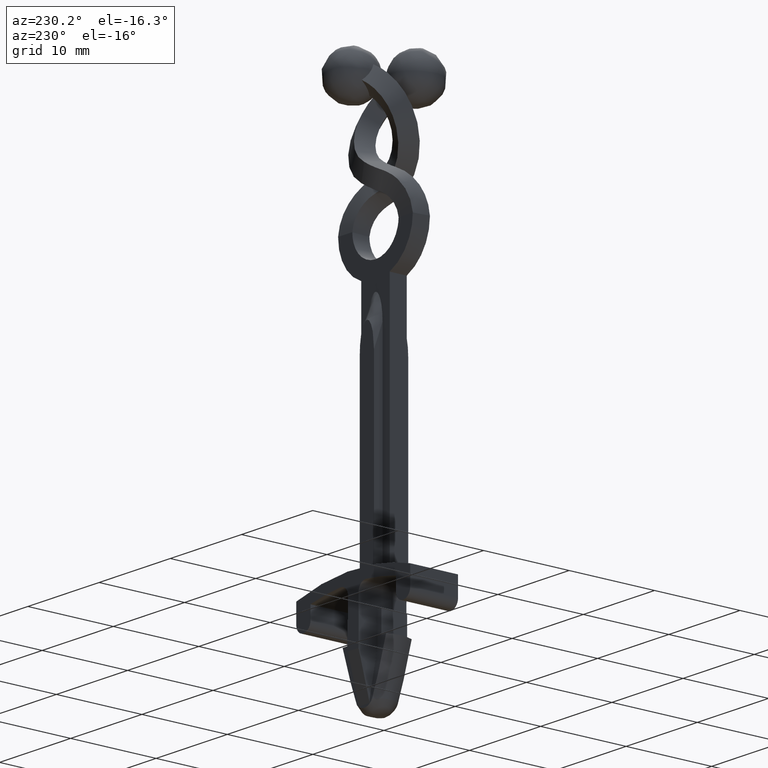
[diagram: clean part render]
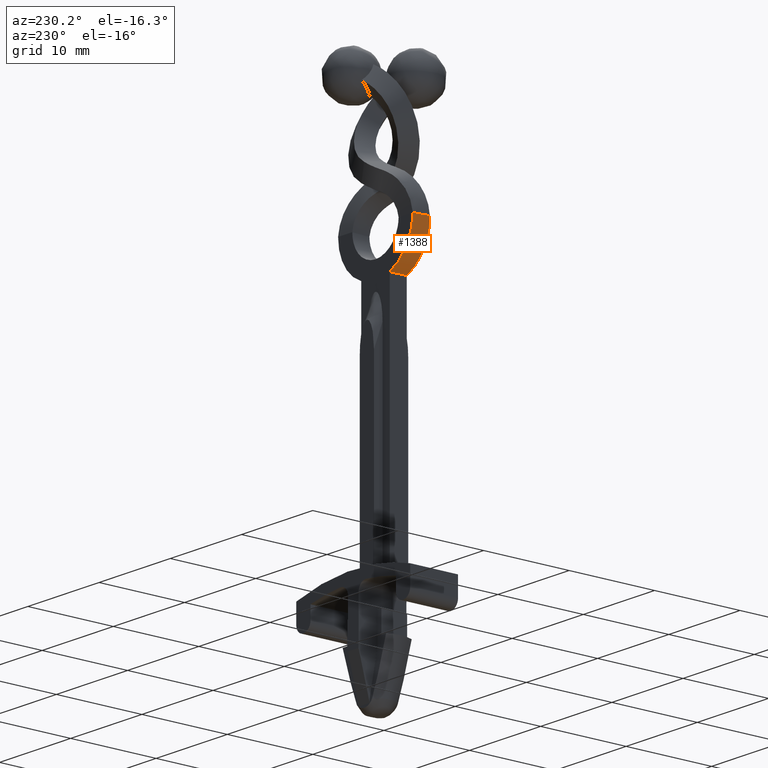
[diagram: same view with one face highlighted and labeled with its STEP entity id]
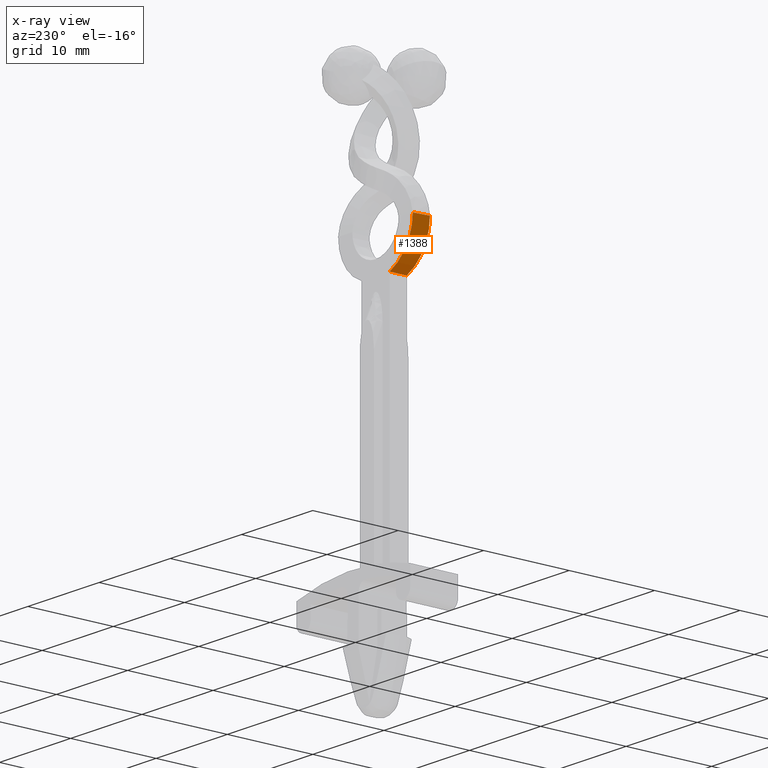
[diagram: x-ray of the same camera — body ghosted, the highlighted face saturated]
A machine part, auxiliary view. The second image highlights one B-rep face of the part: STEP entity #1388.
The next image is the same camera in x-ray: the body ghosted, the highlighted face saturated — about 0% of this face is hidden behind the body in this view.
In plain terms, the highlighted face is a freeform B-spline surface patch.
Its self-contained STEP definition (entity closure, byte-faithful):
#1304=CARTESIAN_POINT('',(-1.964517642053266,1.010006527384433,-4.864117986150483));
#1305=CARTESIAN_POINT('',(-1.964517642053266,0.336646990677876,-4.864117986150483));
#1306=CARTESIAN_POINT('',(-1.964517642053266,-0.336712546028679,-4.864117986150484));
#1307=CARTESIAN_POINT('',(-1.964517642053266,-1.010072082735236,-4.864117986150483));
#1308=CARTESIAN_POINT('',(-2.615844031577649,1.010006527384433,-4.601618689011748));
#1309=CARTESIAN_POINT('',(-2.615844031577648,0.336646990677876,-4.601618689011749));
#1310=CARTESIAN_POINT('',(-2.615844031577649,-0.336712546028679,-4.601618689011750));
#1311=CARTESIAN_POINT('',(-2.615844031577649,-1.010072082735236,-4.601618689011748));
#1312=CARTESIAN_POINT('',(-3.800317120064837,1.010006527384434,-3.823963477575635));
#1313=CARTESIAN_POINT('',(-3.800317120064835,0.336646990677876,-3.823963477575633));
#1314=CARTESIAN_POINT('',(-3.800317120064834,-0.336712546028679,-3.823963477575633));
#1315=CARTESIAN_POINT('',(-3.800317120064837,-1.010072082735236,-3.823963477575635));
#1316=CARTESIAN_POINT('',(-4.878076939143449,1.010006527384433,-2.208415608271143));
#1317=CARTESIAN_POINT('',(-4.878076939143448,0.336646990677875,-2.208415608271143));
#1318=CARTESIAN_POINT('',(-4.878076939143449,-0.336712546028680,-2.208415608271143));
#1319=CARTESIAN_POINT('',(-4.878076939143449,-1.010072082735236,-2.208415608271142));
#1320=CARTESIAN_POINT('',(-5.174171803169217,1.010006527384434,-1.028619550273616));
#1321=CARTESIAN_POINT('',(-5.174171803169216,0.336646990677875,-1.028619550273617));
#1322=CARTESIAN_POINT('',(-5.174171803169215,-0.336712546028679,-1.028619550273617));
#1323=CARTESIAN_POINT('',(-5.174171803169217,-1.010072082735235,-1.028619550273617));
#1324=CARTESIAN_POINT('',(-5.241476646714062,1.010006527384433,-0.344372828346020));
#1325=CARTESIAN_POINT('',(-5.241476646714060,0.336646990677875,-0.344372828346021));
#1326=CARTESIAN_POINT('',(-5.241476646714061,-0.336712546028680,-0.344372828346021));
#1327=CARTESIAN_POINT('',(-5.241476646714062,-1.010072082735236,-0.344372828346021));
#1328=CARTESIAN_POINT('',(-5.251518228079001,1.010006527384433,-0.121052846695626));
#1329=CARTESIAN_POINT('',(-5.251518228079001,0.336646990677875,-0.121052846695626));
#1330=CARTESIAN_POINT('',(-5.251518228079001,-0.336712546028680,-0.121052846695626));
#1331=CARTESIAN_POINT('',(-5.251518228079001,-1.010072082735236,-0.121052846695626));
#1332=CARTESIAN_POINT('',(-5.249881847022250,1.010006527384433,0.054907631001437));
#1333=CARTESIAN_POINT('',(-5.249881847022248,0.336646990677875,0.054907631001437));
#1334=CARTESIAN_POINT('',(-5.249881847022248,-0.336712546028680,0.054907631001437));
#1335=CARTESIAN_POINT('',(-5.249881847022250,-1.010072082735236,0.054907631001437));
#1336=CARTESIAN_POINT('',(-5.249998117434587,1.010006527384433,0.078644371818745));
#1337=CARTESIAN_POINT('',(-5.249998117434587,0.336646990677875,0.078644371818745));
#1338=CARTESIAN_POINT('',(-5.249998117434587,-0.336712546028680,0.078644371818745));
#1339=CARTESIAN_POINT('',(-5.249998117434587,-1.010072082735236,0.078644371818745));
#1340=B_SPLINE_SURFACE_WITH_KNOTS('',3,3,((#1304,#1308,#1312,#1316,#1320,#1324,#1328,#1332,#1336),(#1305,#1309,#1313,#1317,#1321,#1325,#1329,#1333,#1337),(#1306,#1310,#1314,#1318,#1322,#1326,#1330,#1334,#1338),(#1307,#1311,#1315,#1319,#1323,#1327,#1331,#1335,#1339)),.UNSPECIFIED.,.F.,.F.,.U.,(4,4),(4,1,1,2,1,4),(0.0,2.020078610119676),(0.0,2.180433546333000,4.310327434087039,5.907747849902568,6.440221321841078,6.537984767189245),.UNSPECIFIED.);
#1341=CARTESIAN_POINT('',(-2.0,1.0,-4.851873448849520));
#1342=VERTEX_POINT('',#1341);
#1343=CARTESIAN_POINT('',(-5.249820342743500,1.000006138446738,-0.040918356316616));
#1344=VERTEX_POINT('',#1343);
#1345=CARTESIAN_POINT('',(-2.0,1.0,-4.851873448849520));
#1346=CARTESIAN_POINT('',(-2.004149364104244,1.000000003951953,-4.850164847576791));
#1347=CARTESIAN_POINT('',(-2.008297261169627,1.000000007909503,-4.848448869203344));
#1348=CARTESIAN_POINT('',(-2.972574699879736,1.000000927936176,-4.449528837017398));
#1349=CARTESIAN_POINT('',(-3.711771195839598,1.000002012398060,-3.711018887917664));
#1350=CARTESIAN_POINT('',(-4.449906683925233,1.000003095303358,-2.973568961256038));
#1351=CARTESIAN_POINT('',(-4.850100203492644,1.000004177778500,-2.008473954480682));
#1352=CARTESIAN_POINT('',(-5.241889821554256,1.000005237522103,-1.063645551194133));
#1353=CARTESIAN_POINT('',(-5.249820342743500,1.000006138446738,-0.040918356316616));
#1354=B_SPLINE_CURVE_WITH_KNOTS('',2,(#1345,#1346,#1347,#1348,#1349,#1350,#1351,#1352,#1353),.UNSPECIFIED.,.F.,.U.,(3,2,2,2,3),(0.248925351872136,0.250000000000000,0.500000000000000,0.750000000000000,0.995101909204870),.UNSPECIFIED.);
#1355=EDGE_CURVE('',#1342,#1344,#1354,.T.);
#1356=ORIENTED_EDGE('',*,*,#1355,.F.);
#1357=CARTESIAN_POINT('',(-2.0,-1.0,-4.851874954671960));
#1358=VERTEX_POINT('',#1357);
#1359=CARTESIAN_POINT('',(-2.0,1.0,-4.851873448849520));
#1360=CARTESIAN_POINT('',(-2.0,-1.0,-4.851874954671960));
#1361=QUASI_UNIFORM_CURVE('',1,(#1359,#1360),.UNSPECIFIED.,.F.,.U.);
#1362=EDGE_CURVE('',#1342,#1358,#1361,.T.);
#1363=ORIENTED_EDGE('',*,*,#1362,.T.);
#1364=CARTESIAN_POINT('',(-5.250000988660920,-1.000071693797540,0.026189324703322));
#1365=VERTEX_POINT('',#1364);
#1366=CARTESIAN_POINT('',(-2.0,-1.0,-4.851874954671960));
#1367=CARTESIAN_POINT('',(-3.979020112503630,-1.0,-4.037826442187549));
#1368=CARTESIAN_POINT('',(-5.256724799600010,-1.000071693797540,-2.113705620554136));
#1369=CARTESIAN_POINT('',(-5.250000988660920,-1.000071693797540,0.026189324703322));
#1370=B_SPLINE_CURVE_WITH_KNOTS('',3,(#1366,#1367,#1368,#1369),.UNSPECIFIED.,.F.,.U.,(4,4),(0.0,6.419716526245349),.UNSPECIFIED.);
#1371=EDGE_CURVE('',#1358,#1365,#1370,.T.);
#1372=ORIENTED_EDGE('',*,*,#1371,.T.);
#1373=CARTESIAN_POINT('',(-5.250000988660920,-1.000071693797540,0.026189324703322));
#1374=CARTESIAN_POINT('',(-5.250001900036029,-0.666886154486899,0.014931440382195));
#1375=CARTESIAN_POINT('',(-5.250002496335360,-0.333700385615191,0.003678672299185));
#1376=CARTESIAN_POINT('',(-5.250002751350345,-0.000514324187812,-0.007567567814945));
#1377=CARTESIAN_POINT('',(-5.250002878978195,0.166235958768616,-0.013195995706536));
#1378=CARTESIAN_POINT('',(-5.249995458190055,0.332989064835711,-0.018761488868975));
#1379=CARTESIAN_POINT('',(-5.249965034589982,0.499743359030171,-0.024299814890510));
#1380=CARTESIAN_POINT('',(-5.249934610985814,0.666497675666351,-0.029838141657391));
#1381=CARTESIAN_POINT('',(-5.249886184451131,0.833252384186351,-0.035367573456957));
#1382=CARTESIAN_POINT('',(-5.249820342743500,1.000006138446738,-0.040918356316616));
#1383=B_SPLINE_CURVE_WITH_KNOTS('',3,(#1373,#1374,#1375,#1376,#1377,#1378,#1379,#1380,#1381,#1382),.UNSPECIFIED.,.F.,.U.,(4,3,3,4),(0.000000943913372,0.001000994975556,0.001501492520808,0.002001990119649),.UNSPECIFIED.);
#1384=EDGE_CURVE('',#1365,#1344,#1383,.T.);
#1385=ORIENTED_EDGE('',*,*,#1384,.T.);
#1386=EDGE_LOOP('',(#1356,#1363,#1372,#1385));
#1387=FACE_OUTER_BOUND('',#1386,.T.);
#1388=ADVANCED_FACE('',(#1387),#1340,.T.);